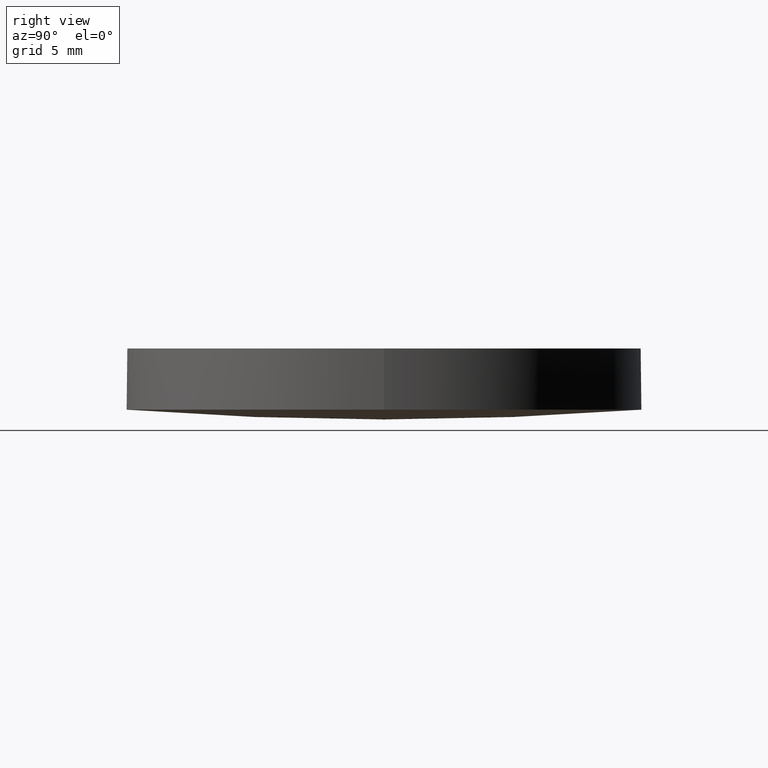
[diagram: clean part render]
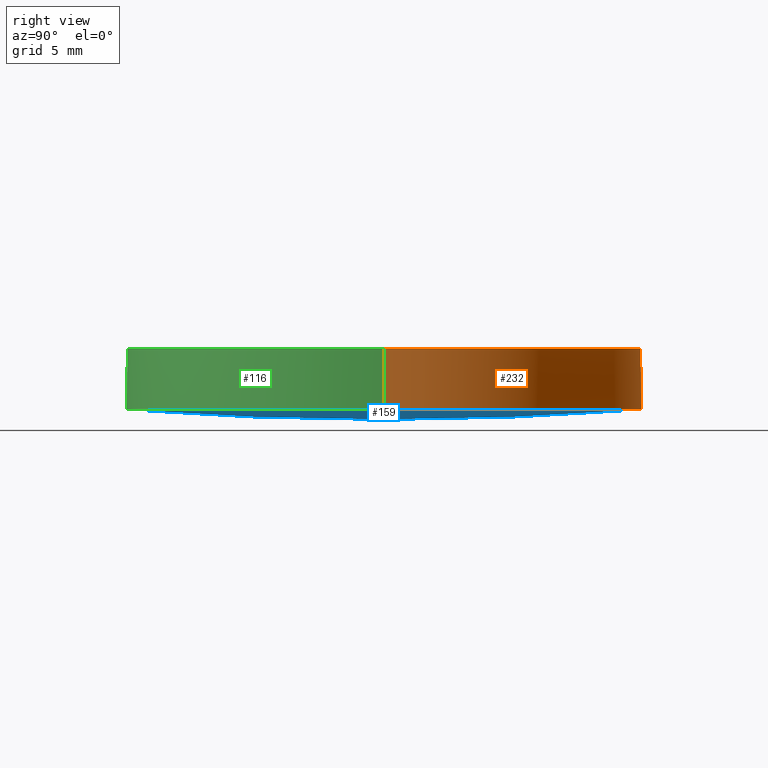
[diagram: same view with three faces highlighted in distinct colors, each labeled with its STEP entity id]
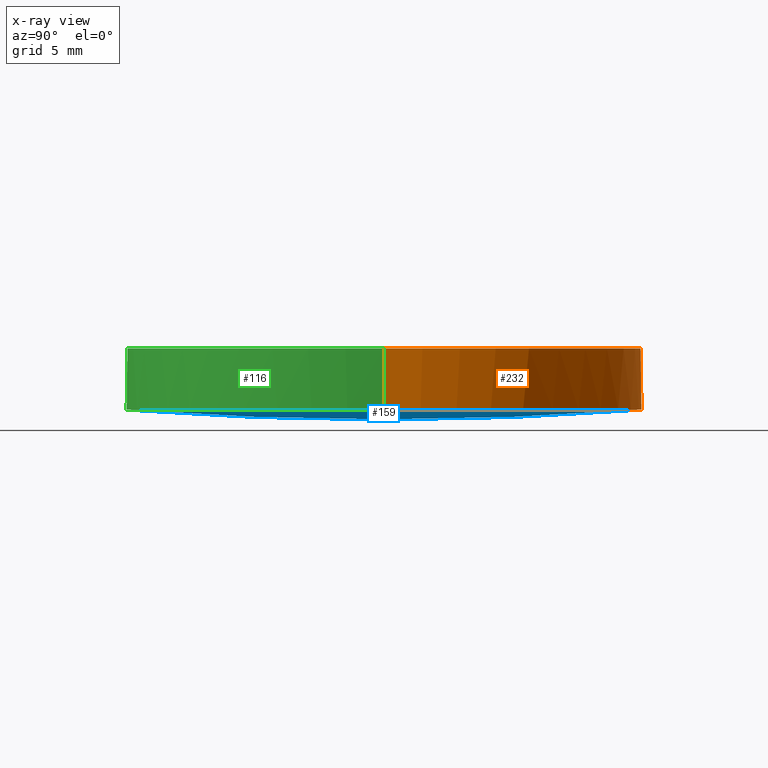
[diagram: x-ray of the same camera — body ghosted, the three highlighted faces saturated]
A machine part, right view with three faces highlighted in distinct colors.
The next image is the same camera in x-ray (body ghosted, the three faces saturated) — at least one of them is partly hidden behind the body in this view.
Their STEP definitions:

[orange] entity #232 — the highlighted cylindrical surface (partial cylindrical patch) has radius 12.7 mm, axis along (0, 0, 1).
#4 = CARTESIAN_POINT ( 'NONE',  ( 4.566836338319999000E-014, 12.69999999999989300, 0.4827347065058701400 ) ) ;
#5 = VECTOR ( 'NONE', #23, 1000.000000000000000 ) ;
#12 = VERTEX_POINT ( 'NONE', #80 ) ;
#14 = AXIS2_PLACEMENT_3D ( 'NONE', #140, #34, #103 ) ;
#21 = CIRCLE ( 'NONE', #112, 12.69999999999999900 ) ;
#23 = DIRECTION ( 'NONE',  ( 0.0000000000000000000, 0.0000000000000000000, 1.000000000000000000 ) ) ;
#27 = VERTEX_POINT ( 'NONE', #4 ) ;
#29 = EDGE_CURVE ( 'NONE', #63, #216, #119, .T. ) ;
#34 = DIRECTION ( 'NONE',  ( -0.0000000000000000000, -0.0000000000000000000, -1.000000000000000000 ) ) ;
#44 = CARTESIAN_POINT ( 'NONE',  ( 12.69999999999999900, 2.442490654175340100E-015, 0.4827347065058740800 ) ) ;
#45 = CARTESIAN_POINT ( 'NONE',  ( 4.996003610813200500E-016, 2.442490654175340100E-015, 0.4827347065058740800 ) ) ;
#56 = ORIENTED_EDGE ( 'NONE', *, *, #91, .T. ) ;
#60 = DIRECTION ( 'NONE',  ( -0.0000000000000000000, -0.0000000000000000000, -1.000000000000000000 ) ) ;
#63 = VERTEX_POINT ( 'NONE', #97 ) ;
#75 = ORIENTED_EDGE ( 'NONE', *, *, #78, .F. ) ;
#78 = EDGE_CURVE ( 'NONE', #27, #96, #210, .T. ) ;
#80 = CARTESIAN_POINT ( 'NONE',  ( 12.69999999999999900, 2.442490654175340100E-015, 3.500000000000000000 ) ) ;
#87 = CARTESIAN_POINT ( 'NONE',  ( 4.996003610813200500E-016, 2.442490654175340100E-015, 0.4827347065058740800 ) ) ;
#91 = EDGE_CURVE ( 'NONE', #216, #12, #21, .T. ) ;
#93 = EDGE_CURVE ( 'NONE', #63, #27, #122, .T. ) ;
#96 = VERTEX_POINT ( 'NONE', #44 ) ;
#97 = CARTESIAN_POINT ( 'NONE',  ( -12.69999999999999900, 3.997792089092478900E-015, 0.4827347065058740800 ) ) ;
#98 = DIRECTION ( 'NONE',  ( -0.0000000000000000000, -0.0000000000000000000, -1.000000000000000000 ) ) ;
#103 = DIRECTION ( 'NONE',  ( 1.000000000000000000, 0.0000000000000000000, 0.0000000000000000000 ) ) ;
#109 = DIRECTION ( 'NONE',  ( 1.000000000000000000, 0.0000000000000000000, 0.0000000000000000000 ) ) ;
#112 = AXIS2_PLACEMENT_3D ( 'NONE', #152, #60, #193 ) ;
#119 = LINE ( 'NONE', #133, #5 ) ;
#122 = CIRCLE ( 'NONE', #14, 12.69999999999999900 ) ;
#128 = EDGE_CURVE ( 'NONE', #96, #12, #177, .T. ) ;
#131 = EDGE_LOOP ( 'NONE', ( #188, #169, #56, #154, #75 ) ) ;
#133 = CARTESIAN_POINT ( 'NONE',  ( -12.69999999999999900, 3.997792089092478900E-015, 0.4827347065058740800 ) ) ;
#136 = FACE_OUTER_BOUND ( 'NONE', #131, .T. ) ;
#140 = CARTESIAN_POINT ( 'NONE',  ( 4.996003610813200500E-016, 2.442490654175340100E-015, 0.4827347065058740800 ) ) ;
#152 = CARTESIAN_POINT ( 'NONE',  ( 4.996003610813200500E-016, 2.442490654175340100E-015, 3.500000000000000000 ) ) ;
#154 = ORIENTED_EDGE ( 'NONE', *, *, #128, .F. ) ;
#155 = CARTESIAN_POINT ( 'NONE',  ( 12.69999999999999900, 2.442490654175340100E-015, 0.4827347065058740800 ) ) ;
#166 = AXIS2_PLACEMENT_3D ( 'NONE', #87, #203, #109 ) ;
#168 = AXIS2_PLACEMENT_3D ( 'NONE', #45, #98, #225 ) ;
#169 = ORIENTED_EDGE ( 'NONE', *, *, #29, .T. ) ;
#177 = LINE ( 'NONE', #155, #212 ) ;
#185 = CYLINDRICAL_SURFACE ( 'NONE', #166, 12.69999999999999900 ) ;
#188 = ORIENTED_EDGE ( 'NONE', *, *, #93, .F. ) ;
#193 = DIRECTION ( 'NONE',  ( 1.000000000000000000, 0.0000000000000000000, 0.0000000000000000000 ) ) ;
#196 = CARTESIAN_POINT ( 'NONE',  ( -12.69999999999999900, 3.997792089092478900E-015, 3.500000000000000000 ) ) ;
#199 = DIRECTION ( 'NONE',  ( 0.0000000000000000000, 0.0000000000000000000, 1.000000000000000000 ) ) ;
#203 = DIRECTION ( 'NONE',  ( 0.0000000000000000000, 0.0000000000000000000, 1.000000000000000000 ) ) ;
#210 = CIRCLE ( 'NONE', #168, 12.69999999999999900 ) ;
#212 = VECTOR ( 'NONE', #199, 1000.000000000000000 ) ;
#216 = VERTEX_POINT ( 'NONE', #196 ) ;
#225 = DIRECTION ( 'NONE',  ( 1.000000000000000000, 0.0000000000000000000, 0.0000000000000000000 ) ) ;
#232 = ADVANCED_FACE ( 'NONE', ( #136 ), #185, .T. ) ;

[blue] entity #159 — the highlighted face is a freeform B-spline surface patch.
#4 = CARTESIAN_POINT ( 'NONE',  ( 4.566836338319999000E-014, 12.69999999999989300, 0.4827347065058701400 ) ) ;
#7 = CARTESIAN_POINT ( 'NONE',  ( 4.251272293049448900, -12.85210128437011600, 0.4943841095981241800 ) ) ;
#17 = CIRCLE ( 'NONE', #42, 12.69999999999999900 ) ;
#27 = VERTEX_POINT ( 'NONE', #4 ) ;
#28 = CARTESIAN_POINT ( 'NONE',  ( 0.0000000000000000000, 0.0000000000000000000, 167.3000000000000100 ) ) ;
#30 = CARTESIAN_POINT ( 'NONE',  ( 4.996003610813200500E-016, 2.442490654175340100E-015, 0.4827347065058740800 ) ) ;
#32 = ORIENTED_EDGE ( 'NONE', *, *, #110, .T. ) ;
#37 = EDGE_LOOP ( 'NONE', ( #32, #124, #220 ) ) ;
#42 = AXIS2_PLACEMENT_3D ( 'NONE', #30, #175, #233 ) ;
#44 = CARTESIAN_POINT ( 'NONE',  ( 12.69999999999999900, 2.442490654175340100E-015, 0.4827347065058740800 ) ) ;
#45 = CARTESIAN_POINT ( 'NONE',  ( 4.996003610813200500E-016, 2.442490654175340100E-015, 0.4827347065058740800 ) ) ;
#50 = EDGE_CURVE ( 'NONE', #145, #27, #53, .T. ) ;
#53 = CIRCLE ( 'NONE', #226, 167.3000000000000100 ) ;
#64 = CARTESIAN_POINT ( 'NONE',  ( 12.78866154361464400, 4.292490182803538400, 0.3239042502452546000 ) ) ;
#65 = CARTESIAN_POINT ( 'NONE',  ( 8.533044335085511600, 4.292490182803535800, -0.002032512706883035800 ) ) ;
#68 = CARTESIAN_POINT ( 'NONE',  ( 8.499439857995271900, -12.85210128437011400, 0.6568293304935302100 ) ) ;
#74 =( BOUNDED_SURFACE ( )  B_SPLINE_SURFACE ( 3, 3, ( 
 ( #227, #7, #68, #178 ),
 ( #214, #195, #200, #213 ),
 ( #86, #215, #65, #64 ),
 ( #81, #135, #231, #229 ) ),
 .UNSPECIFIED., .F., .F., .F. ) 
 B_SPLINE_SURFACE_WITH_KNOTS ( ( 4, 4 ),
 ( 4, 4 ),
 ( 0.0000000000000000000, 1.000000000000000000 ),
 ( 0.0000000000000000000, 1.000000000000000000 ),
 .UNSPECIFIED. ) 
 GEOMETRIC_REPRESENTATION_ITEM ( )  RATIONAL_B_SPLINE_SURFACE ( (
 ( 1.000000000000000000, 0.9995131295779148300, 0.9995131295779148300, 1.000000000000000000),
 ( 0.9980299497525477700, 0.9975440384896581100, 0.9975440384896581100, 0.9980299497525477700),
 ( 0.9980299497525477700, 0.9975440384896581100, 0.9975440384896581100, 0.9980299497525477700),
 ( 1.000000000000000000, 0.9995131295779148300, 0.9995131295779148300, 1.000000000000000000) ) ) 
 REPRESENTATION_ITEM ( '' )  SURFACE ( )  );
#78 = EDGE_CURVE ( 'NONE', #27, #96, #210, .T. ) ;
#81 = CARTESIAN_POINT ( 'NONE',  ( 4.561202874315415500E-014, 12.85210128437013400, 0.4943841095981227300 ) ) ;
#86 = CARTESIAN_POINT ( 'NONE',  ( 4.878348029230784500E-014, 4.292490182803534000, -0.1651199978920794300 ) ) ;
#96 = VERTEX_POINT ( 'NONE', #44 ) ;
#98 = DIRECTION ( 'NONE',  ( -0.0000000000000000000, -0.0000000000000000000, -1.000000000000000000 ) ) ;
#110 = EDGE_CURVE ( 'NONE', #96, #145, #17, .T. ) ;
#124 = ORIENTED_EDGE ( 'NONE', *, *, #50, .T. ) ;
#135 = CARTESIAN_POINT ( 'NONE',  ( 4.251272293049440900, 12.85210128437013700, 0.4943841095981241800 ) ) ;
#145 = VERTEX_POINT ( 'NONE', #161 ) ;
#159 = ADVANCED_FACE ( 'NONE', ( #165 ), #74, .T. ) ;
#161 = CARTESIAN_POINT ( 'NONE',  ( 5.449188795093373900E-014, -12.69999999999989300, 0.4827347065058701400 ) ) ;
#165 = FACE_OUTER_BOUND ( 'NONE', #37, .T. ) ;
#168 = AXIS2_PLACEMENT_3D ( 'NONE', #45, #98, #225 ) ;
#173 = DIRECTION ( 'NONE',  ( 1.000000000000000000, 3.473828569973949900E-016, 3.002094871832189900E-016 ) ) ;
#175 = DIRECTION ( 'NONE',  ( -0.0000000000000000000, -0.0000000000000000000, -1.000000000000000000 ) ) ;
#178 = CARTESIAN_POINT ( 'NONE',  ( 12.73829777343121200, -12.85210128437011300, 0.9814825029645473100 ) ) ;
#190 = DIRECTION ( 'NONE',  ( 3.473828569973949900E-016, -1.000000000000000000, 0.0000000000000000000 ) ) ;
#195 = CARTESIAN_POINT ( 'NONE',  ( 4.268080669220469600, -4.292490182803513600, -0.1651199978920772100 ) ) ;
#200 = CARTESIAN_POINT ( 'NONE',  ( 8.533044335085515200, -4.292490182803512700, -0.002032512706882005800 ) ) ;
#210 = CIRCLE ( 'NONE', #168, 12.69999999999999900 ) ;
#213 = CARTESIAN_POINT ( 'NONE',  ( 12.78866154361464600, -4.292490182803512700, 0.3239042502452556000 ) ) ;
#214 = CARTESIAN_POINT ( 'NONE',  ( 5.176575529897896200E-014, -4.292490182803517100, -0.1651199978920784600 ) ) ;
#215 = CARTESIAN_POINT ( 'NONE',  ( 4.268080669220465100, 4.292490182803534900, -0.1651199978920781800 ) ) ;
#220 = ORIENTED_EDGE ( 'NONE', *, *, #78, .T. ) ;
#225 = DIRECTION ( 'NONE',  ( 1.000000000000000000, 0.0000000000000000000, 0.0000000000000000000 ) ) ;
#226 = AXIS2_PLACEMENT_3D ( 'NONE', #28, #173, #190 ) ;
#227 = CARTESIAN_POINT ( 'NONE',  ( 5.454122806832292800E-014, -12.85210128437011800, 0.4943841095981227300 ) ) ;
#229 = CARTESIAN_POINT ( 'NONE',  ( 12.73829777343120300, 12.85210128437013900, 0.9814825029645473100 ) ) ;
#231 = CARTESIAN_POINT ( 'NONE',  ( 8.499439857995261200, 12.85210128437013900, 0.6568293304935302100 ) ) ;
#233 = DIRECTION ( 'NONE',  ( 1.000000000000000000, 0.0000000000000000000, 0.0000000000000000000 ) ) ;

[green] entity #116 — the highlighted cylindrical surface (partial cylindrical patch) has radius 12.7 mm, axis along (0, 0, 1).
#5 = VECTOR ( 'NONE', #23, 1000.000000000000000 ) ;
#8 = ORIENTED_EDGE ( 'NONE', *, *, #153, .T. ) ;
#12 = VERTEX_POINT ( 'NONE', #80 ) ;
#17 = CIRCLE ( 'NONE', #42, 12.69999999999999900 ) ;
#23 = DIRECTION ( 'NONE',  ( 0.0000000000000000000, 0.0000000000000000000, 1.000000000000000000 ) ) ;
#24 = ORIENTED_EDGE ( 'NONE', *, *, #29, .F. ) ;
#29 = EDGE_CURVE ( 'NONE', #63, #216, #119, .T. ) ;
#30 = CARTESIAN_POINT ( 'NONE',  ( 4.996003610813200500E-016, 2.442490654175340100E-015, 0.4827347065058740800 ) ) ;
#42 = AXIS2_PLACEMENT_3D ( 'NONE', #30, #175, #233 ) ;
#44 = CARTESIAN_POINT ( 'NONE',  ( 12.69999999999999900, 2.442490654175340100E-015, 0.4827347065058740800 ) ) ;
#46 = CARTESIAN_POINT ( 'NONE',  ( 4.996003610813200500E-016, 2.442490654175340100E-015, 0.4827347065058740800 ) ) ;
#59 = DIRECTION ( 'NONE',  ( 1.000000000000000000, 0.0000000000000000000, 0.0000000000000000000 ) ) ;
#62 = DIRECTION ( 'NONE',  ( 1.000000000000000000, 0.0000000000000000000, 0.0000000000000000000 ) ) ;
#63 = VERTEX_POINT ( 'NONE', #97 ) ;
#70 = EDGE_CURVE ( 'NONE', #145, #63, #205, .T. ) ;
#72 = ORIENTED_EDGE ( 'NONE', *, *, #128, .T. ) ;
#76 = DIRECTION ( 'NONE',  ( 1.000000000000000000, 0.0000000000000000000, 0.0000000000000000000 ) ) ;
#80 = CARTESIAN_POINT ( 'NONE',  ( 12.69999999999999900, 2.442490654175340100E-015, 3.500000000000000000 ) ) ;
#85 = AXIS2_PLACEMENT_3D ( 'NONE', #115, #148, #59 ) ;
#96 = VERTEX_POINT ( 'NONE', #44 ) ;
#97 = CARTESIAN_POINT ( 'NONE',  ( -12.69999999999999900, 3.997792089092478900E-015, 0.4827347065058740800 ) ) ;
#101 = AXIS2_PLACEMENT_3D ( 'NONE', #46, #211, #76 ) ;
#102 = ORIENTED_EDGE ( 'NONE', *, *, #70, .F. ) ;
#106 = CARTESIAN_POINT ( 'NONE',  ( 4.996003610813200500E-016, 2.442490654175340100E-015, 3.500000000000000000 ) ) ;
#110 = EDGE_CURVE ( 'NONE', #96, #145, #17, .T. ) ;
#111 = ORIENTED_EDGE ( 'NONE', *, *, #110, .F. ) ;
#113 = AXIS2_PLACEMENT_3D ( 'NONE', #106, #174, #62 ) ;
#115 = CARTESIAN_POINT ( 'NONE',  ( 4.996003610813200500E-016, 2.442490654175340100E-015, 0.4827347065058740800 ) ) ;
#116 = ADVANCED_FACE ( 'NONE', ( #201 ), #197, .T. ) ;
#119 = LINE ( 'NONE', #133, #5 ) ;
#128 = EDGE_CURVE ( 'NONE', #96, #12, #177, .T. ) ;
#133 = CARTESIAN_POINT ( 'NONE',  ( -12.69999999999999900, 3.997792089092478900E-015, 0.4827347065058740800 ) ) ;
#143 = EDGE_LOOP ( 'NONE', ( #24, #102, #111, #72, #8 ) ) ;
#145 = VERTEX_POINT ( 'NONE', #161 ) ;
#148 = DIRECTION ( 'NONE',  ( -0.0000000000000000000, -0.0000000000000000000, -1.000000000000000000 ) ) ;
#153 = EDGE_CURVE ( 'NONE', #12, #216, #204, .T. ) ;
#155 = CARTESIAN_POINT ( 'NONE',  ( 12.69999999999999900, 2.442490654175340100E-015, 0.4827347065058740800 ) ) ;
#161 = CARTESIAN_POINT ( 'NONE',  ( 5.449188795093373900E-014, -12.69999999999989300, 0.4827347065058701400 ) ) ;
#174 = DIRECTION ( 'NONE',  ( -0.0000000000000000000, -0.0000000000000000000, -1.000000000000000000 ) ) ;
#175 = DIRECTION ( 'NONE',  ( -0.0000000000000000000, -0.0000000000000000000, -1.000000000000000000 ) ) ;
#177 = LINE ( 'NONE', #155, #212 ) ;
#196 = CARTESIAN_POINT ( 'NONE',  ( -12.69999999999999900, 3.997792089092478900E-015, 3.500000000000000000 ) ) ;
#197 = CYLINDRICAL_SURFACE ( 'NONE', #101, 12.69999999999999900 ) ;
#199 = DIRECTION ( 'NONE',  ( 0.0000000000000000000, 0.0000000000000000000, 1.000000000000000000 ) ) ;
#201 = FACE_OUTER_BOUND ( 'NONE', #143, .T. ) ;
#204 = CIRCLE ( 'NONE', #113, 12.69999999999999900 ) ;
#205 = CIRCLE ( 'NONE', #85, 12.69999999999999900 ) ;
#211 = DIRECTION ( 'NONE',  ( 0.0000000000000000000, 0.0000000000000000000, 1.000000000000000000 ) ) ;
#212 = VECTOR ( 'NONE', #199, 1000.000000000000000 ) ;
#216 = VERTEX_POINT ( 'NONE', #196 ) ;
#233 = DIRECTION ( 'NONE',  ( 1.000000000000000000, 0.0000000000000000000, 0.0000000000000000000 ) ) ;